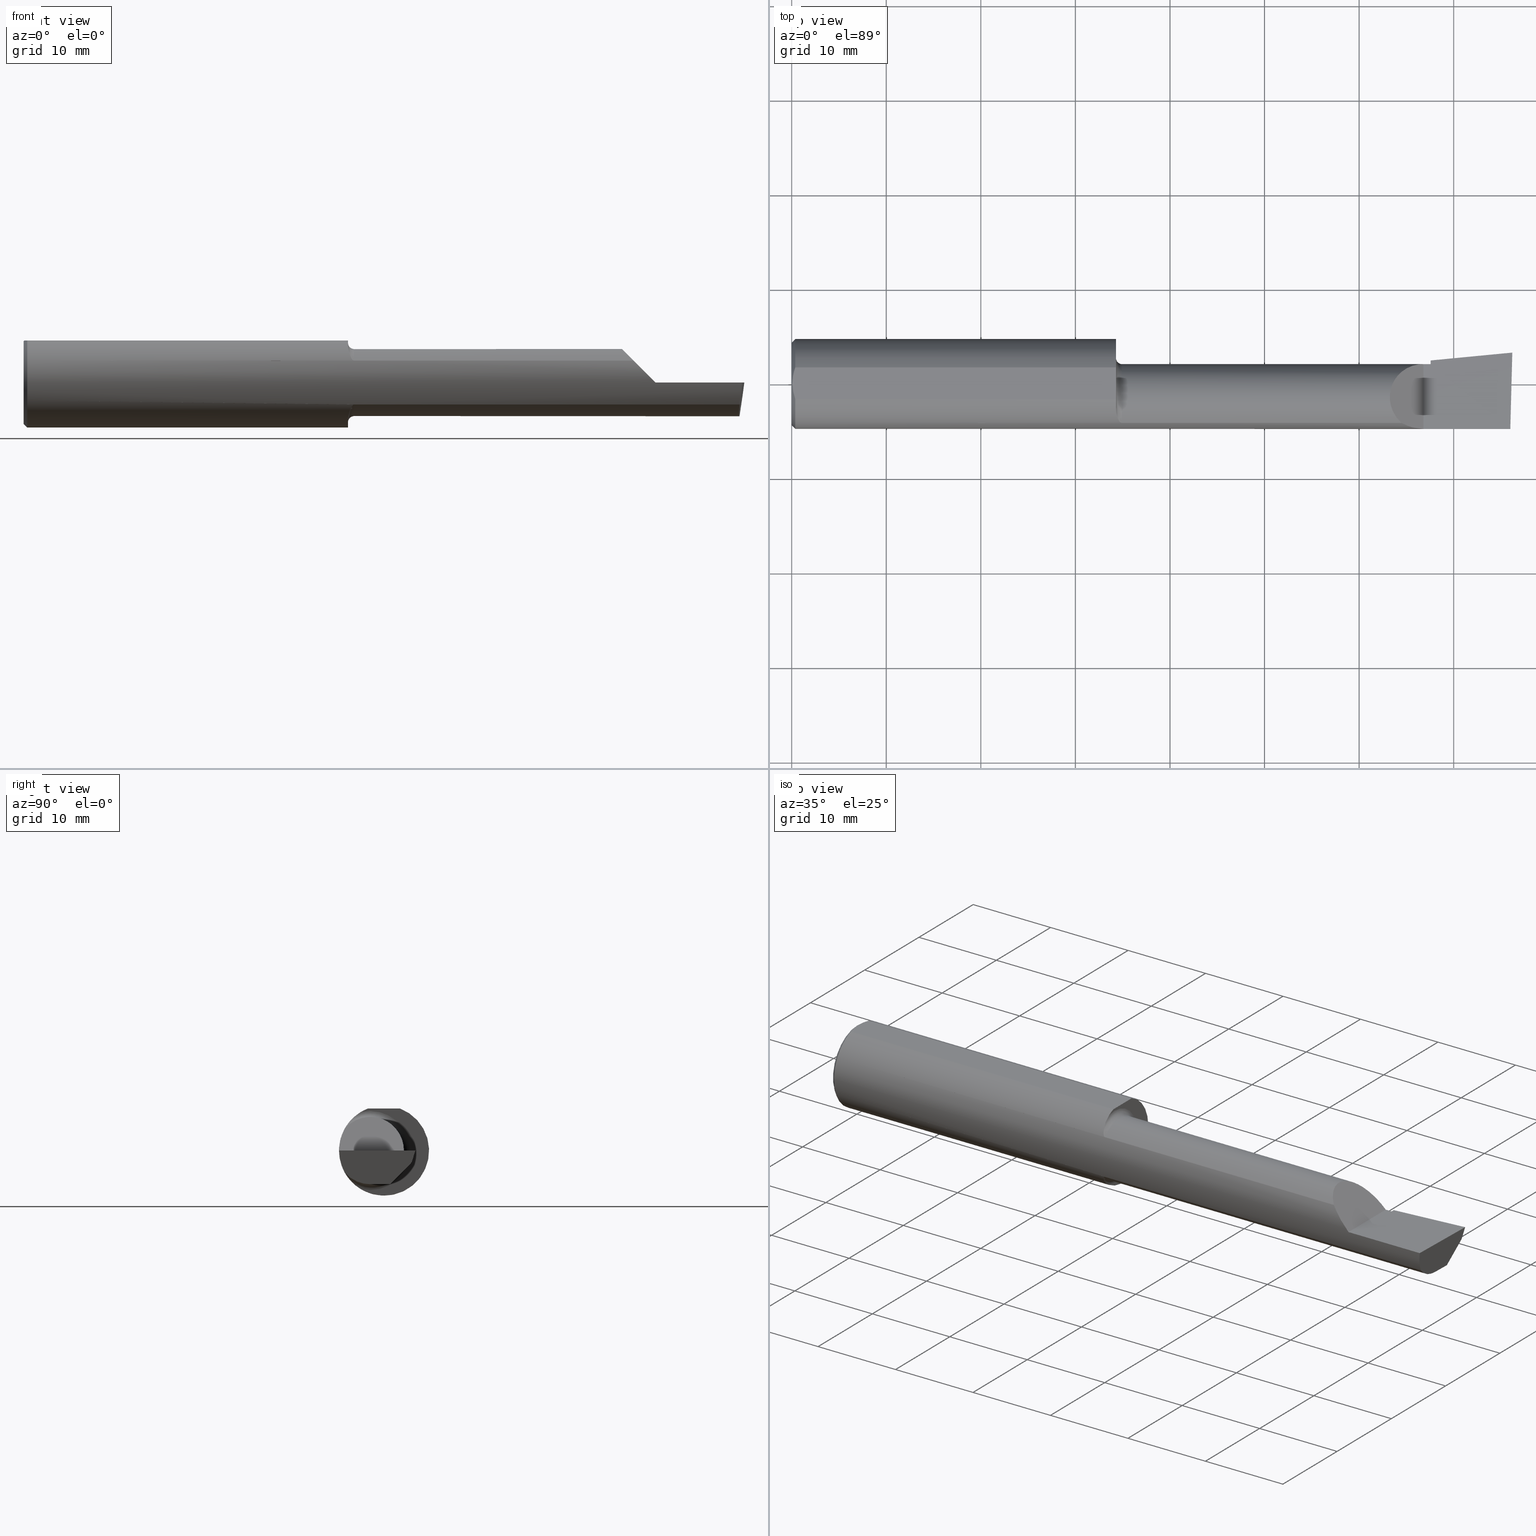
[diagram: canonical four-view strip — front | top / right | iso, engineering-drawing reading convention]
A machine part, canonical four-view strip (front | top / right | iso — engineering-drawing reading convention). The complete STEP part file that produces these views, byte-faithful:
ISO-10303-21;
HEADER;
FILE_DESCRIPTION (( 'STEP AP214' ),
    '1' );
FILE_NAME ('B3201600.STEP',
    '2020-05-07T19:10:57',
    ( '' ),
    ( '' ),
    'SwSTEP 2.0',
    'SolidWorks 2018',
    '' );
FILE_SCHEMA (( 'AUTOMOTIVE_DESIGN' ));
ENDSEC;

DATA;
#1 = LINE ( 'NONE', #24, #16 ) ;
#2 = EDGE_LOOP ( 'NONE', ( #470, #54, #351, #475, #72, #394, #500, #101, #364, #507 ) ) ;
#3 = ORIENTED_EDGE ( 'NONE', *, *, #292, .T. ) ;
#4 = CARTESIAN_POINT ( 'NONE',  ( 2.659999999999999698, -0.05739999999999999963, -0.1400500000000000633 ) ) ;
#5 = DIRECTION ( 'NONE',  ( 0.0000000000000000000, 0.0000000000000000000, -1.000000000000000000 ) ) ;
#6 = DIRECTION ( 'NONE',  ( -1.000000000000000000, -5.691349986800549142E-18, -0.0000000000000000000 ) ) ;
#7 = SURFACE_STYLE_USAGE ( .BOTH. , #343 ) ;
#8 = VERTEX_POINT ( 'NONE', #289 ) ;
#9 = DIRECTION ( 'NONE',  ( 1.000000000000000000, 0.0000000000000000000, 0.0000000000000000000 ) ) ;
#10 = CARTESIAN_POINT ( 'NONE',  ( 1.350000000000000089, 0.2373500000000000332, 0.1753499999999999504 ) ) ;
#11 = DIRECTION ( 'NONE',  ( 3.962974135542379642E-18, -0.6963153109074927682, -0.7177360153954946975 ) ) ;
#12 = AXIS2_PLACEMENT_3D ( 'NONE', #104, #478, #589 ) ;
#13 = CARTESIAN_POINT ( 'NONE',  ( 2.659999999999999698, 0.09791172361283660697, 0.0000000000000000000 ) ) ;
#14 = EDGE_CURVE ( 'NONE', #393, #8, #505, .T. ) ;
#15 = VECTOR ( 'NONE', #529, 39.37007874015748143 ) ;
#16 = VECTOR ( 'NONE', #419, 39.37007874015748143 ) ;
#17 = FACE_OUTER_BOUND ( 'NONE', #98, .T. ) ;
#18 = DIRECTION ( 'NONE',  ( 0.7071067811865390240, 8.659560562355036396E-17, 0.7071067811865560104 ) ) ;
#19 = ADVANCED_BREP_SHAPE_REPRESENTATION ( 'B3201600', ( #160, #332 ), #284 ) ;
#20 = AXIS2_PLACEMENT_3D ( 'NONE', #190, #218, #86 ) ;
#21 = DIRECTION ( 'NONE',  ( 0.0000000000000000000, 0.6963153109074926572, 0.7177360153954946975 ) ) ;
#22 = CYLINDRICAL_SURFACE ( 'NONE', #203, 0.1873499999999999888 ) ;
#23 = EDGE_CURVE ( 'NONE', #37, #525, #187, .T. ) ;
#24 = CARTESIAN_POINT ( 'NONE',  ( 1.047026079080030980, -0.05740000000000000657, 2.081593536574432036E-16 ) ) ;
#25 = CARTESIAN_POINT ( 'NONE',  ( 0.0000000000000000000, 0.0000000000000000000, 0.0000000000000000000 ) ) ;
#26 = PLANE ( 'NONE',  #97 ) ;
#27 = DIRECTION ( 'NONE',  ( 0.0000000000000000000, -1.000000000000000000, 0.0000000000000000000 ) ) ;
#28 = ORIENTED_EDGE ( 'NONE', *, *, #52, .T. ) ;
#29 = ORIENTED_EDGE ( 'NONE', *, *, #68, .F. ) ;
#30 = PLANE ( 'NONE',  #127 ) ;
#31 = CARTESIAN_POINT ( 'NONE',  ( 2.659999999999999698, 0.06382066673065302231, -0.06931012851386068874 ) ) ;
#32 = PRESENTATION_STYLE_ASSIGNMENT (( #574 ) ) ;
#33 = CARTESIAN_POINT ( 'NONE',  ( 2.659999999999999698, -0.05739999999999999963, 0.0000000000000000000 ) ) ;
#34 = CARTESIAN_POINT ( 'NONE',  ( 3.011419111345318367, 0.1163922996227946122, -0.05000000000000000971 ) ) ;
#35 = DIRECTION ( 'NONE',  ( -0.06894566448119619773, 0.7160281025913033393, -0.6946583704589935904 ) ) ;
#36 = DIRECTION ( 'NONE',  ( 1.000000000000000000, 5.691349986800549142E-18, 0.0000000000000000000 ) ) ;
#37 = VERTEX_POINT ( 'NONE', #223 ) ;
#38 = ORIENTED_EDGE ( 'NONE', *, *, #244, .F. ) ;
#39 = CARTESIAN_POINT ( 'NONE',  ( 0.01499999999999999424, 0.0000000000000000000, 0.0000000000000000000 ) ) ;
#40 = DIRECTION ( 'NONE',  ( 5.691349986800549142E-18, -1.000000000000000000, 0.0000000000000000000 ) ) ;
#41 = DIRECTION ( 'NONE',  ( -1.000000000000000000, -5.691349986800549142E-18, -0.0000000000000000000 ) ) ;
#42 = LINE ( 'NONE', #474, #433 ) ;
#43 = DIRECTION ( 'NONE',  ( -1.000000000000000000, -5.691349986800549142E-18, 0.0000000000000000000 ) ) ;
#44 = ORIENTED_EDGE ( 'NONE', *, *, #383, .F. ) ;
#45 = ORIENTED_EDGE ( 'NONE', *, *, #169, .T. ) ;
#46 = VERTEX_POINT ( 'NONE', #214 ) ;
#47 = DIRECTION ( 'NONE',  ( -1.415561931153809475E-16, 0.0000000000000000000, -1.000000000000000000 ) ) ;
#48 = ORIENTED_EDGE ( 'NONE', *, *, #143, .T. ) ;
#49 = DIRECTION ( 'NONE',  ( 0.0000000000000000000, 0.0000000000000000000, -1.000000000000000000 ) ) ;
#50 = VECTOR ( 'NONE', #416, 39.37007874015748143 ) ;
#51 = DIRECTION ( 'NONE',  ( 0.0000000000000000000, 1.000000000000000000, 0.0000000000000000000 ) ) ;
#52 = EDGE_CURVE ( 'NONE', #306, #272, #503, .T. ) ;
#53 = DIRECTION ( 'NONE',  ( 1.000000000000000000, 0.0000000000000000000, 0.0000000000000000000 ) ) ;
#54 = ORIENTED_EDGE ( 'NONE', *, *, #153, .T. ) ;
#55 = ORIENTED_EDGE ( 'NONE', *, *, #567, .T. ) ;
#56 = VECTOR ( 'NONE', #526, 39.37007874015748854 ) ;
#57 = CONICAL_SURFACE ( 'NONE', #64, 0.1873499999999999888, 0.7853981633974602694 ) ;
#58 = AXIS2_PLACEMENT_3D ( 'NONE', #79, #66, #59 ) ;
#59 = DIRECTION ( 'NONE',  ( -0.7071067811865516806, 0.0000000000000000000, 0.7071067811865434649 ) ) ;
#60 = DIRECTION ( 'NONE',  ( -1.000000000000000000, -0.0000000000000000000, -0.0000000000000000000 ) ) ;
#61 = DIRECTION ( 'NONE',  ( 0.02617694830786174848, 0.9996573249755575929, -3.650474420802213197E-18 ) ) ;
#62 = CARTESIAN_POINT ( 'NONE',  ( 0.0000000000000000000, 0.0000000000000000000, 0.0000000000000000000 ) ) ;
#63 = ORIENTED_EDGE ( 'NONE', *, *, #259, .T. ) ;
#64 = AXIS2_PLACEMENT_3D ( 'NONE', #39, #53, #49 ) ;
#65 = VERTEX_POINT ( 'NONE', #180 ) ;
#66 = DIRECTION ( 'NONE',  ( -0.7071067811865434649, 0.0000000000000000000, -0.7071067811865516806 ) ) ;
#67 = CARTESIAN_POINT ( 'NONE',  ( 2.977889026591903576, -0.05682100378451744593, -0.1400500000000000633 ) ) ;
#68 = EDGE_CURVE ( 'NONE', #472, #335, #490, .T. ) ;
#69 = FILL_AREA_STYLE ('',( #171 ) ) ;
#70 = CARTESIAN_POINT ( 'NONE',  ( 2.659999999999999698, -0.05739999999999999963, 0.0000000000000000000 ) ) ;
#71 = CIRCLE ( 'NONE', #12, 0.1723499999999996424 ) ;
#72 = ORIENTED_EDGE ( 'NONE', *, *, #197, .T. ) ;
#73 = ORIENTED_EDGE ( 'NONE', *, *, #556, .T. ) ;
#74 = DIRECTION ( 'NONE',  ( 0.0000000000000000000, -1.000000000000000000, 0.0000000000000000000 ) ) ;
#75 = VECTOR ( 'NONE', #200, 39.37007874015748143 ) ;
#76 = DIRECTION ( 'NONE',  ( -1.000000000000000000, -5.691349986800549142E-18, -0.0000000000000000000 ) ) ;
#77 = CIRCLE ( 'NONE', #240, 0.1400500000000000356 ) ;
#78 = CARTESIAN_POINT ( 'NONE',  ( 2.659999999999999698, -0.05739999999999999963, 0.0000000000000000000 ) ) ;
#79 = CARTESIAN_POINT ( 'NONE',  ( 2.629999999999999893, -0.2500000000000000555, -1.592040838891560883E-17 ) ) ;
#80 = AXIS2_PLACEMENT_3D ( 'NONE', #87, #43, #40 ) ;
#81 = DIRECTION ( 'NONE',  ( -1.000000000000000000, -5.691349986800549142E-18, -0.0000000000000000000 ) ) ;
#82 = CARTESIAN_POINT ( 'NONE',  ( 1.350000000000000089, -0.05740000000000000657, 0.0000000000000000000 ) ) ;
#83 = DIRECTION ( 'NONE',  ( -1.000000000000000000, -0.0000000000000000000, -0.0000000000000000000 ) ) ;
#84 = PLANE ( 'NONE',  #80 ) ;
#85 = ORIENTED_EDGE ( 'NONE', *, *, #249, .T. ) ;
#86 = DIRECTION ( 'NONE',  ( 0.0000000000000000000, -1.000000000000000000, 0.0000000000000000000 ) ) ;
#87 = CARTESIAN_POINT ( 'NONE',  ( 2.659999999999999698, 0.09791172361283660697, 0.0000000000000000000 ) ) ;
#88 = COLOUR_RGB ( '',0.7529411764705882248, 0.7529411764705882248, 0.7529411764705882248 ) ;
#89 = EDGE_CURVE ( 'NONE', #46, #472, #591, .T. ) ;
#90 = PLANE ( 'NONE',  #58 ) ;
#91 = LINE ( 'NONE', #585, #50 ) ;
#92 = CARTESIAN_POINT ( 'NONE',  ( 1.350000000000000533, -0.1045082199249680460, -0.1557306416133594773 ) ) ;
#93 = DIRECTION ( 'NONE',  ( 0.0000000000000000000, 1.000000000000000000, -1.438723400918613551E-16 ) ) ;
#94 = ORIENTED_EDGE ( 'NONE', *, *, #596, .F. ) ;
#95 = ORIENTED_EDGE ( 'NONE', *, *, #377, .F. ) ;
#96 = DIRECTION ( 'NONE',  ( 0.0000000000000000000, -1.438723400918613551E-16, -1.000000000000000000 ) ) ;
#97 = AXIS2_PLACEMENT_3D ( 'NONE', #34, #35, #21 ) ;
#98 = EDGE_LOOP ( 'NONE', ( #576, #446 ) ) ;
#99 = EDGE_CURVE ( 'NONE', #142, #281, #443, .T. ) ;
#100 = ORIENTED_EDGE ( 'NONE', *, *, #362, .T. ) ;
#101 = ORIENTED_EDGE ( 'NONE', *, *, #564, .F. ) ;
#102 = FACE_OUTER_BOUND ( 'NONE', #420, .T. ) ;
#103 = PLANE ( 'NONE',  #387 ) ;
#104 = CARTESIAN_POINT ( 'NONE',  ( 0.0000000000000000000, 0.0000000000000000000, 0.0000000000000000000 ) ) ;
#105 = PLANE ( 'NONE',  #541 ) ;
#106 = CARTESIAN_POINT ( 'NONE',  ( 2.977925907309858733, -0.1365595166907236646, -0.1227499502647107915 ) ) ;
#107 = ORIENTED_EDGE ( 'NONE', *, *, #153, .F. ) ;
#108 = DIRECTION ( 'NONE',  ( -0.0000000000000000000, 1.000000000000000000, -0.0000000000000000000 ) ) ;
#109 = VECTOR ( 'NONE', #122, 39.37007874015748143 ) ;
#110 = LINE ( 'NONE', #499, #15 ) ;
#111 = ORIENTED_EDGE ( 'NONE', *, *, #421, .T. ) ;
#112 = ORIENTED_EDGE ( 'NONE', *, *, #444, .F. ) ;
#113 = CARTESIAN_POINT ( 'NONE',  ( 1.367975941902153769, -0.1612443294219079171, -0.09540922431498234657 ) ) ;
#114 = LINE ( 'NONE', #324, #75 ) ;
#115 = CARTESIAN_POINT ( 'NONE',  ( 2.538695632261437130, -0.1635956445993032027, 0.09130436773856151489 ) ) ;
#116 = EDGE_CURVE ( 'NONE', #37, #65, #202, .T. ) ;
#117 = CARTESIAN_POINT ( 'NONE',  ( 2.980058035321266008, 0.02601009779168165365, -0.1400500000000000911 ) ) ;
#118 = CARTESIAN_POINT ( 'NONE',  ( 0.01499999999999997863, -0.06597272163553657975, 0.1753499999999999781 ) ) ;
#119 = EDGE_CURVE ( 'NONE', #525, #408, #159, .T. ) ;
#120 = CARTESIAN_POINT ( 'NONE',  ( 2.629999999999999893, -0.2500000000000000555, -1.592040838891560883E-17 ) ) ;
#121 = CARTESIAN_POINT ( 'NONE',  ( 3.000000000000000444, 0.2373500000000000332, 0.1753499999999999504 ) ) ;
#122 = DIRECTION ( 'NONE',  ( 5.691349986800549142E-18, -1.000000000000000000, 1.438723400918613551E-16 ) ) ;
#123 = CARTESIAN_POINT ( 'NONE',  ( 2.975850273311264615, -0.1244607267090813429, -0.1422282308645910209 ) ) ;
#124 = CARTESIAN_POINT ( 'NONE',  ( 3.000188977433809967, 0.1311105994646679929, 0.001440373173037931857 ) ) ;
#125 = PLANE ( 'NONE',  #392 ) ;
#126 = DIRECTION ( 'NONE',  ( 1.000000000000000000, 0.0000000000000000000, 0.0000000000000000000 ) ) ;
#127 = AXIS2_PLACEMENT_3D ( 'NONE', #25, #9, #5 ) ;
#128 = VECTOR ( 'NONE', #129, 39.37007874015748143 ) ;
#129 = DIRECTION ( 'NONE',  ( -5.691349986800549142E-18, 1.000000000000000000, 8.056458378187594471E-34 ) ) ;
#130 = CARTESIAN_POINT ( 'NONE',  ( 1.350000000000000089, 0.0000000000000000000, 0.0000000000000000000 ) ) ;
#131 = ORIENTED_EDGE ( 'NONE', *, *, #323, .F. ) ;
#132 = DIRECTION ( 'NONE',  ( 0.0000000000000000000, 0.0000000000000000000, -1.000000000000000000 ) ) ;
#133 = ORIENTED_EDGE ( 'NONE', *, *, #270, .T. ) ;
#134 = AXIS2_PLACEMENT_3D ( 'NONE', #482, #554, #495 ) ;
#135 = VECTOR ( 'NONE', #260, 39.37007874015748854 ) ;
#136 = UNCERTAINTY_MEASURE_WITH_UNIT (LENGTH_MEASURE( 1.000000000000000082E-05 ), #208, 'distance_accuracy_value', 'NONE');
#137 = DIRECTION ( 'NONE',  ( 0.1240019227989310469, 0.3022330132596640073, 0.9451342385281318315 ) ) ;
#138 = CARTESIAN_POINT ( 'NONE',  ( 0.01499999999999999424, 0.0000000000000000000, 0.0000000000000000000 ) ) ;
#139 = ORIENTED_EDGE ( 'NONE', *, *, #68, .T. ) ;
#140 = EDGE_LOOP ( 'NONE', ( #28, #63, #45, #457 ) ) ;
#141 = AXIS2_PLACEMENT_3D ( 'NONE', #13, #563, #459 ) ;
#142 = VERTEX_POINT ( 'NONE', #373 ) ;
#143 = EDGE_CURVE ( 'NONE', #287, #393, #360, .T. ) ;
#144 = VECTOR ( 'NONE', #11, 39.37007874015748143 ) ;
#145 = CARTESIAN_POINT ( 'NONE',  ( 2.659999999999999698, 0.09791172361284160297, 3.564207929233843464E-16 ) ) ;
#146 = ORIENTED_EDGE ( 'NONE', *, *, #236, .F. ) ;
#147 = ORIENTED_EDGE ( 'NONE', *, *, #292, .F. ) ;
#148 = EDGE_CURVE ( 'NONE', #281, #349, #401, .T. ) ;
#149 = FACE_OUTER_BOUND ( 'NONE', #336, .T. ) ;
#150 = LINE ( 'NONE', #339, #135 ) ;
#151 = EDGE_CURVE ( 'NONE', #306, #142, #201, .T. ) ;
#152 = CARTESIAN_POINT ( 'NONE',  ( 1.375000000000000000, -0.1635956445993028141, 0.09130436773856195898 ) ) ;
#153 = EDGE_CURVE ( 'NONE', #37, #393, #575, .T. ) ;
#154 = EDGE_LOOP ( 'NONE', ( #147, #371, #532, #266 ) ) ;
#155 = CARTESIAN_POINT ( 'NONE',  ( 1.375000000000000000, -0.1635956445993028141, 0.09130436773856195898 ) ) ;
#156 = FACE_OUTER_BOUND ( 'NONE', #183, .T. ) ;
#157 = CARTESIAN_POINT ( 'NONE',  ( 2.659999999999999698, 0.06382066673065302231, -0.06931012851386068874 ) ) ;
#158 = CARTESIAN_POINT ( 'NONE',  ( 2.017499999999999627, -0.1635956445993030084, -0.09130436773856182020 ) ) ;
#159 = LINE ( 'NONE', #337, #434 ) ;
#160 = MANIFOLD_SOLID_BREP ( 'AC1E0625-BE1C-467e-97C6-19D7A493B566-GAAFaceID8', #582 ) ;
#161 = CARTESIAN_POINT ( 'NONE',  ( 1.372800914500664771, -0.1635956445997548414, 0.09130436773775266190 ) ) ;
#162 = LINE ( 'NONE', #547, #386 ) ;
#163 = ORIENTED_EDGE ( 'NONE', *, *, #220, .F. ) ;
#164 = CARTESIAN_POINT ( 'NONE',  ( 0.01499999999999999424, 2.294375778202566330E-17, 0.1873499999999999888 ) ) ;
#165 = ORIENTED_EDGE ( 'NONE', *, *, #14, .F. ) ;
#166 = CIRCLE ( 'NONE', #273, 0.1873499999999999888 ) ;
#167 = AXIS2_PLACEMENT_3D ( 'NONE', #245, #36, #51 ) ;
#168 = CARTESIAN_POINT ( 'NONE',  ( 1.370903862568969123, -0.1628809688430619684, 0.09258733509388514249 ) ) ;
#169 = EDGE_CURVE ( 'NONE', #553, #142, #584, .T. ) ;
#170 = CARTESIAN_POINT ( 'NONE',  ( 1.368001859868116954, -0.1612625562479369501, 0.09537826053888209810 ) ) ;
#171 = FILL_AREA_STYLE_COLOUR ( '', #88 ) ;
#172 = ORIENTED_EDGE ( 'NONE', *, *, #116, .T. ) ;
#173 = CARTESIAN_POINT ( 'NONE',  ( 1.366855994529494023, -0.1603175578889966257, 0.09696363432848485731 ) ) ;
#174 = CARTESIAN_POINT ( 'NONE',  ( 1.363764108097883510, -0.1573043405450769150, 0.1018329020719639239 ) ) ;
#175 = LINE ( 'NONE', #455, #56 ) ;
#176 = CARTESIAN_POINT ( 'NONE',  ( 1.362204638458737405, -0.1550630761760522225, 0.1052254855377564996 ) ) ;
#177 = FACE_OUTER_BOUND ( 'NONE', #515, .T. ) ;
#178 = PRODUCT_DEFINITION_SHAPE ( 'NONE', 'NONE',  #519 ) ;
#179 = CARTESIAN_POINT ( 'NONE',  ( 1.358072954143140221, -0.1479074971576197217, 0.1152872342625233248 ) ) ;
#180 = CARTESIAN_POINT ( 'NONE',  ( 2.977873865042416135, -0.05739999999999999963, -0.1400500000000000633 ) ) ;
#181 = CARTESIAN_POINT ( 'NONE',  ( 1.375000000000000000, -0.05740000000000001351, 0.0000000000000000000 ) ) ;
#182 = CARTESIAN_POINT ( 'NONE',  ( 1.356142321956750996, -0.1426151417460929660, 0.1217894822571234520 ) ) ;
#183 = EDGE_LOOP ( 'NONE', ( #286, #520 ) ) ;
#184 = CARTESIAN_POINT ( 'NONE',  ( 1.353025912205683357, -0.1310442973014113721, 0.1341609063345044484 ) ) ;
#185 = DIRECTION ( 'NONE',  ( -1.000000000000000000, -5.691349986800549142E-18, -0.0000000000000000000 ) ) ;
#186 = CARTESIAN_POINT ( 'NONE',  ( 1.351891754936544787, -0.1247344934163566177, 0.1400506178720502537 ) ) ;
#187 =( BOUNDED_CURVE ( )  B_SPLINE_CURVE ( 3, ( #283, #277, #334, #238 ),
 .UNSPECIFIED., .F., .F. ) 
 B_SPLINE_CURVE_WITH_KNOTS ( ( 4, 4 ),
 ( 0.8516985021653838972, 1.360746882514818790 ),
 .UNSPECIFIED. ) 
 CURVE ( )  GEOMETRIC_REPRESENTATION_ITEM ( )  RATIONAL_B_SPLINE_CURVE ( ( 1.000000000000000000, 0.9785221379938656705, 0.9785221379938656705, 1.000000000000000000 ) ) 
 REPRESENTATION_ITEM ( '' )  );
#188 = CARTESIAN_POINT ( 'NONE',  ( 1.350383728133730532, -0.1114837668894150813, 0.1508119329971097655 ) ) ;
#189 = ORIENTED_EDGE ( 'NONE', *, *, #527, .F. ) ;
#190 = CARTESIAN_POINT ( 'NONE',  ( 1.375000000000000000, -0.05740000000000000657, 0.0000000000000000000 ) ) ;
#191 = DIRECTION ( 'NONE',  ( -0.9922060308645482829, 0.02598182930468199286, 0.1218693434051471985 ) ) ;
#192 = EDGE_CURVE ( 'NONE', #272, #595, #1, .T. ) ;
#193 = FACE_OUTER_BOUND ( 'NONE', #154, .T. ) ;
#194 = VERTEX_POINT ( 'NONE', #483 ) ;
#195 = DIRECTION ( 'NONE',  ( 0.0000000000000000000, -1.000000000000000000, 0.0000000000000000000 ) ) ;
#196 = ORIENTED_EDGE ( 'NONE', *, *, #410, .F. ) ;
#197 = EDGE_CURVE ( 'NONE', #535, #376, #466, .T. ) ;
#198 = AXIS2_PLACEMENT_3D ( 'NONE', #130, #550, #551 ) ;
#199 = AXIS2_PLACEMENT_3D ( 'NONE', #365, #415, #422 ) ;
#200 = DIRECTION ( 'NONE',  ( -1.000000000000000000, 5.691349986800548372E-18, -0.0000000000000000000 ) ) ;
#201 = CIRCLE ( 'NONE', #501, 0.1400500000000001188 ) ;
#202 =( BOUNDED_CURVE ( )  B_SPLINE_CURVE ( 3, ( #454, #106, #570, #536 ),
 .UNSPECIFIED., .F., .T. ) 
 B_SPLINE_CURVE_WITH_KNOTS ( ( 4, 4 ),
 ( 5.632580117768535288, 6.493234751459663556 ),
 .UNSPECIFIED. ) 
 CURVE ( )  GEOMETRIC_REPRESENTATION_ITEM ( )  RATIONAL_B_SPLINE_CURVE ( ( 1.000000000000000000, 0.9392195014330942948, 0.9392195014330942948, 1.000000000000000000 ) ) 
 REPRESENTATION_ITEM ( '' )  );
#203 = AXIS2_PLACEMENT_3D ( 'NONE', #465, #467, #461 ) ;
#204 = FACE_OUTER_BOUND ( 'NONE', #248, .T. ) ;
#205 = CARTESIAN_POINT ( 'NONE',  ( 1.350000000000000311, -0.1045012500212953166, 0.1557348687830035772 ) ) ;
#206 = B_SPLINE_CURVE_WITH_KNOTS ( 'NONE', 3,
 ( #548, #522, #372, #369, #542, #586 ),
 .UNSPECIFIED., .F., .F.,
 ( 4, 2, 4 ),
 ( 0.003480013901590607410, 0.004330767971208085432, 0.005181522040825563453 ),
 .UNSPECIFIED. ) ;
#207 = SHAPE_DEFINITION_REPRESENTATION ( #178, #19 ) ;
#208 =( CONVERSION_BASED_UNIT ( 'INCH', #514 ) LENGTH_UNIT ( ) NAMED_UNIT ( #508 ) );
#209 = ORIENTED_EDGE ( 'NONE', *, *, #244, .T. ) ;
#210 = DIRECTION ( 'NONE',  ( 0.1219104985252825735, 0.0000000000000000000, 0.9925410975618678133 ) ) ;
#211 = CARTESIAN_POINT ( 'NONE',  ( 0.0000000000000000000, 0.0000000000000000000, 0.0000000000000000000 ) ) ;
#212 = CARTESIAN_POINT ( 'NONE',  ( 2.659999999999999698, -0.2500000000000000555, -2.016709418237695393E-17 ) ) ;
#213 = CARTESIAN_POINT ( 'NONE',  ( 2.659999999999999698, 0.01441505128072268979, -0.1202356058309982378 ) ) ;
#214 = CARTESIAN_POINT ( 'NONE',  ( 0.0000000000000000000, 0.0000000000000000000, -0.1723499999999996424 ) ) ;
#215 = ADVANCED_FACE ( 'NONE', ( #177 ), #417, .F. ) ;
#216 = TOROIDAL_SURFACE ( 'NONE', #350, 0.1650499999999999468, 0.02499999999999993894 ) ;
#217 = ORIENTED_EDGE ( 'NONE', *, *, #14, .T. ) ;
#218 = DIRECTION ( 'NONE',  ( -1.000000000000000000, -5.691349986800549142E-18, -0.0000000000000000000 ) ) ;
#219 = ORIENTED_EDGE ( 'NONE', *, *, #596, .T. ) ;
#220 = EDGE_CURVE ( 'NONE', #472, #46, #71, .T. ) ;
#221 = CARTESIAN_POINT ( 'NONE',  ( 0.01499999999999999424, 0.0000000000000000000, -0.1873499999999999888 ) ) ;
#222 = DIRECTION ( 'NONE',  ( -5.691349986800549142E-18, 1.000000000000000000, 0.0000000000000000000 ) ) ;
#223 = CARTESIAN_POINT ( 'NONE',  ( 2.981080296960511244, -0.1635956445993030084, -0.09130436773856182020 ) ) ;
#224 = AXIS2_PLACEMENT_3D ( 'NONE', #310, #395, #402 ) ;
#225 = DIRECTION ( 'NONE',  ( 1.000000000000000000, 5.691349986800549142E-18, 0.0000000000000000000 ) ) ;
#226 = VERTEX_POINT ( 'NONE', #4 ) ;
#227 =( BOUNDED_CURVE ( )  B_SPLINE_CURVE ( 3, ( #566, #555, #568, #115 ),
 .UNSPECIFIED., .F., .T. ) 
 B_SPLINE_CURVE_WITH_KNOTS ( ( 4, 4 ),
 ( 4.712388980384689674, 5.221437360734123345 ),
 .UNSPECIFIED. ) 
 CURVE ( )  GEOMETRIC_REPRESENTATION_ITEM ( )  RATIONAL_B_SPLINE_CURVE ( ( 1.000000000000000000, 0.9785221379938657815, 0.9785221379938657815, 1.000000000000000000 ) ) 
 REPRESENTATION_ITEM ( '' )  );
#228 = CARTESIAN_POINT ( 'NONE',  ( 2.659999999999999698, 0.08265000000000008451, 3.563723795045364098E-16 ) ) ;
#229 = LINE ( 'NONE', #67, #333 ) ;
#230 = ORIENTED_EDGE ( 'NONE', *, *, #512, .F. ) ;
#231 = ADVANCED_FACE ( 'NONE', ( #321 ), #125, .T. ) ;
#232 = CARTESIAN_POINT ( 'NONE',  ( 1.350000000000000089, -0.09715400696864118224, 0.1601908905959924245 ) ) ;
#233 = APPLICATION_PROTOCOL_DEFINITION ( 'draft international standard', 'automotive_design', 1998, #345 ) ;
#234 = VECTOR ( 'NONE', #108, 39.37007874015748143 ) ;
#235 = CARTESIAN_POINT ( 'NONE',  ( 1.350000000000000089, -0.09715400696864118224, -0.1601908905959924245 ) ) ;
#236 = EDGE_CURVE ( 'NONE', #194, #8, #492, .T. ) ;
#237 = ADVANCED_FACE ( 'NONE', ( #285 ), #506, .T. ) ;
#238 = CARTESIAN_POINT ( 'NONE',  ( 2.991672876941000592, -0.1873499999999999888, -6.711400925391220565E-17 ) ) ;
#239 = FACE_OUTER_BOUND ( 'NONE', #381, .T. ) ;
#240 = AXIS2_PLACEMENT_3D ( 'NONE', #70, #242, #195 ) ;
#241 = ORIENTED_EDGE ( 'NONE', *, *, #410, .T. ) ;
#242 = DIRECTION ( 'NONE',  ( 1.000000000000000000, 5.691349986800549142E-18, 0.0000000000000000000 ) ) ;
#243 = ADVANCED_FACE ( 'NONE', ( #193 ), #378, .T. ) ;
#244 = EDGE_CURVE ( 'NONE', #46, #398, #593, .T. ) ;
#245 = CARTESIAN_POINT ( 'NONE',  ( 1.350000000000000089, 0.0000000000000000000, 0.0000000000000000000 ) ) ;
#246 = ORIENTED_EDGE ( 'NONE', *, *, #23, .T. ) ;
#247 = LINE ( 'NONE', #318, #312 ) ;
#248 = EDGE_LOOP ( 'NONE', ( #354, #255, #95, #94, #484 ) ) ;
#249 = EDGE_CURVE ( 'NONE', #561, #349, #253, .T. ) ;
#250 = ADVANCED_FACE ( 'NONE', ( #239 ), #216, .F. ) ;
#251 = VECTOR ( 'NONE', #412, 39.37007874015748143 ) ;
#252 =( NAMED_UNIT ( * ) PLANE_ANGLE_UNIT ( ) SI_UNIT ( $, .RADIAN. ) );
#253 = LINE ( 'NONE', #304, #388 ) ;
#254 = ORIENTED_EDGE ( 'NONE', *, *, #377, .T. ) ;
#255 = ORIENTED_EDGE ( 'NONE', *, *, #421, .F. ) ;
#256 = LINE ( 'NONE', #124, #391 ) ;
#257 = DIRECTION ( 'NONE',  ( 0.0000000000000000000, 0.0000000000000000000, 1.000000000000000000 ) ) ;
#258 = EDGE_LOOP ( 'NONE', ( #462, #278, #133, #294 ) ) ;
#259 = EDGE_CURVE ( 'NONE', #272, #553, #150, .T. ) ;
#260 = DIRECTION ( 'NONE',  ( 1.671023757235062219E-18, -0.2936076258024056806, -0.9559260233253797923 ) ) ;
#261 = MECHANICAL_DESIGN_GEOMETRIC_PRESENTATION_REPRESENTATION (  '', ( #404 ), #359 ) ;
#262 = CIRCLE ( 'NONE', #558, 0.1400500000000001188 ) ;
#263 = ADVANCED_FACE ( 'NONE', ( #102 ), #534, .T. ) ;
#264 = SURFACE_STYLE_FILL_AREA ( #69 ) ;
#265 =( NAMED_UNIT ( * ) SI_UNIT ( $, .STERADIAN. ) SOLID_ANGLE_UNIT ( ) );
#266 = ORIENTED_EDGE ( 'NONE', *, *, #192, .T. ) ;
#267 =( LENGTH_UNIT ( ) NAMED_UNIT ( * ) SI_UNIT ( $, .METRE. ) );
#268 = EDGE_CURVE ( 'NONE', #194, #287, #451, .T. ) ;
#269 = ORIENTED_EDGE ( 'NONE', *, *, #148, .F. ) ;
#270 = EDGE_CURVE ( 'NONE', #65, #226, #114, .T. ) ;
#271 = FACE_OUTER_BOUND ( 'NONE', #435, .T. ) ;
#272 = VERTEX_POINT ( 'NONE', #145 ) ;
#273 = AXIS2_PLACEMENT_3D ( 'NONE', #308, #327, #257 ) ;
#274 = DIMENSIONAL_EXPONENTS ( 1.000000000000000000, 0.0000000000000000000, 0.0000000000000000000, 0.0000000000000000000, 0.0000000000000000000, 0.0000000000000000000, 0.0000000000000000000 ) ;
#275 = ORIENTED_EDGE ( 'NONE', *, *, #480, .F. ) ;
#276 = EDGE_LOOP ( 'NONE', ( #328, #423, #479 ) ) ;
#277 = CARTESIAN_POINT ( 'NONE',  ( 2.984117089522341892, -0.1792580844883771007, -0.06324101202936142918 ) ) ;
#278 = ORIENTED_EDGE ( 'NONE', *, *, #444, .T. ) ;
#279 =( NAMED_UNIT ( * ) SI_UNIT ( $, .STERADIAN. ) SOLID_ANGLE_UNIT ( ) );
#280 = UNCERTAINTY_MEASURE_WITH_UNIT (LENGTH_MEASURE( 1.000000000000000082E-05 ), #552, 'distance_accuracy_value', 'NONE');
#281 = VERTEX_POINT ( 'NONE', #213 ) ;
#282 =( NAMED_UNIT ( * ) PLANE_ANGLE_UNIT ( ) SI_UNIT ( $, .RADIAN. ) );
#283 = CARTESIAN_POINT ( 'NONE',  ( 2.981080296960511244, -0.1635956445993030084, -0.09130436773856182020 ) ) ;
#284 =( GEOMETRIC_REPRESENTATION_CONTEXT ( 3 ) GLOBAL_UNCERTAINTY_ASSIGNED_CONTEXT ( ( #348 ) ) GLOBAL_UNIT_ASSIGNED_CONTEXT ( ( #543, #252, #265 ) ) REPRESENTATION_CONTEXT ( 'NONE', 'WORKASPACE' ) );
#285 = FACE_OUTER_BOUND ( 'NONE', #2, .T. ) ;
#286 = ORIENTED_EDGE ( 'NONE', *, *, #564, .T. ) ;
#287 = VERTEX_POINT ( 'NONE', #152 ) ;
#288 = ADVANCED_FACE ( 'NONE', ( #347 ), #436, .T. ) ;
#289 = CARTESIAN_POINT ( 'NONE',  ( 1.350000000000000089, -0.09715400696864118224, -0.1601908905959924245 ) ) ;
#290 = ORIENTED_EDGE ( 'NONE', *, *, #383, .T. ) ;
#291 = CIRCLE ( 'NONE', #198, 0.1873499999999999888 ) ;
#292 = EDGE_CURVE ( 'NONE', #517, #595, #256, .T. ) ;
#293 = ORIENTED_EDGE ( 'NONE', *, *, #380, .T. ) ;
#294 = ORIENTED_EDGE ( 'NONE', *, *, #341, .T. ) ;
#295 = ADVANCED_FACE ( 'NONE', ( #204 ), #103, .F. ) ;
#296 = VECTOR ( 'NONE', #185, 39.37007874015748143 ) ;
#297 = ADVANCED_FACE ( 'NONE', ( #271 ), #105, .F. ) ;
#298 = ORIENTED_EDGE ( 'NONE', *, *, #23, .F. ) ;
#299 = ORIENTED_EDGE ( 'NONE', *, *, #362, .F. ) ;
#300 = CARTESIAN_POINT ( 'NONE',  ( 3.000000000000000444, -0.2500000000000000555, -6.829619984160658046E-17 ) ) ;
#301 = FILL_AREA_STYLE ('',( #578 ) ) ;
#302 = EDGE_CURVE ( 'NONE', #281, #226, #262, .T. ) ;
#303 = LINE ( 'NONE', #545, #486 ) ;
#304 = CARTESIAN_POINT ( 'NONE',  ( 2.991859106488688802, 0.02714641170210402646, -0.1400500000000000633 ) ) ;
#305 = VECTOR ( 'NONE', #430, 39.37007874015748143 ) ;
#306 = VERTEX_POINT ( 'NONE', #228 ) ;
#307 = ORIENTED_EDGE ( 'NONE', *, *, #567, .F. ) ;
#308 = CARTESIAN_POINT ( 'NONE',  ( 0.01499999999999999424, 0.0000000000000000000, 0.0000000000000000000 ) ) ;
#309 = ADVANCED_FACE ( 'NONE', ( #523 ), #90, .F. ) ;
#310 = CARTESIAN_POINT ( 'NONE',  ( 3.009953961983672599, 0.1316084575252021160, -6.829619984160658046E-17 ) ) ;
#311 = ADVANCED_FACE ( 'NONE', ( #379 ), #84, .T. ) ;
#312 = VECTOR ( 'NONE', #316, 39.37007874015748143 ) ;
#313 = ADVANCED_FACE ( 'NONE', ( #477 ), #57, .T. ) ;
#314 = CARTESIAN_POINT ( 'NONE',  ( 1.370881499230869771, -0.1628722075910989942, -0.09260290410947885631 ) ) ;
#315 = ORIENTED_EDGE ( 'NONE', *, *, #89, .F. ) ;
#316 = DIRECTION ( 'NONE',  ( 1.000000000000000000, 0.0000000000000000000, 0.0000000000000000000 ) ) ;
#317 = ADVANCED_FACE ( 'NONE', ( #577 ), #26, .T. ) ;
#318 = CARTESIAN_POINT ( 'NONE',  ( 0.0000000000000000000, 0.06597272163553677404, 0.1753499999999999226 ) ) ;
#319 = ADVANCED_FACE ( 'NONE', ( #17 ), #30, .F. ) ;
#320 = CARTESIAN_POINT ( 'NONE',  ( 1.372779935319434097, -0.1635956445993030639, -0.09130436773856182020 ) ) ;
#321 = FACE_OUTER_BOUND ( 'NONE', #140, .T. ) ;
#322 = CARTESIAN_POINT ( 'NONE',  ( 1.350000000000000089, 0.1076499999999999402, 0.0000000000000000000 ) ) ;
#323 = EDGE_CURVE ( 'NONE', #517, #553, #175, .T. ) ;
#324 = CARTESIAN_POINT ( 'NONE',  ( 3.000000000000000444, -0.05739999999999999963, -0.1400500000000000633 ) ) ;
#325 = ADVANCED_FACE ( 'NONE', ( #156 ), #385, .F. ) ;
#326 = CARTESIAN_POINT ( 'NONE',  ( 0.01128414053810044074, -0.05542038647445821781, 0.1753499999999999781 ) ) ;
#327 = DIRECTION ( 'NONE',  ( -1.000000000000000000, -0.0000000000000000000, -0.0000000000000000000 ) ) ;
#328 = ORIENTED_EDGE ( 'NONE', *, *, #302, .F. ) ;
#329 = ADVANCED_FACE ( 'NONE', ( #149 ), #22, .T. ) ;
#330 = CARTESIAN_POINT ( 'NONE',  ( 0.01499999999999997863, -0.06597272163553657975, 0.1753499999999999781 ) ) ;
#331 = CARTESIAN_POINT ( 'NONE',  ( 2.475085956200449022, 0.08265000000000004288, 0.1549140437995496777 ) ) ;
#332 = AXIS2_PLACEMENT_3D ( 'NONE', #211, #456, #450 ) ;
#333 = VECTOR ( 'NONE', #458, 39.37007874015748143 ) ;
#334 = CARTESIAN_POINT ( 'NONE',  ( 2.987725449370730590, -0.1873500000000000165, -0.03213820089768519572 ) ) ;
#335 = VERTEX_POINT ( 'NONE', #485 ) ;
#336 = EDGE_LOOP ( 'NONE', ( #107, #246, #426, #597, #521, #513, #196, #427, #307, #299, #111, #275, #165 ) ) ;
#337 = CARTESIAN_POINT ( 'NONE',  ( 5.044671737413194975E-32, -0.1873499999999999610, 3.563723795045361633E-16 ) ) ;
#338 = DIRECTION ( 'NONE',  ( -0.9953961983671800740, -0.09584575252021031166, -1.093478026937437971E-17 ) ) ;
#339 = CARTESIAN_POINT ( 'NONE',  ( 2.659999999999999698, 0.09456875743780461530, -0.01088401009027227528 ) ) ;
#340 = PRODUCT_DEFINITION_CONTEXT ( 'detailed design', #448, 'design' ) ;
#341 = EDGE_CURVE ( 'NONE', #226, #349, #42, .T. ) ;
#342 = CARTESIAN_POINT ( 'NONE',  ( 2.659999999999999698, 0.09791172361283660697, 0.0000000000000000000 ) ) ;
#343 = SURFACE_SIDE_STYLE ('',( #406 ) ) ;
#344 = EDGE_LOOP ( 'NONE', ( #163, #139, #254, #100, #38 ) ) ;
#345 = APPLICATION_CONTEXT ( 'automotive_design' ) ;
#346 = ORIENTED_EDGE ( 'NONE', *, *, #480, .T. ) ;
#347 = FACE_OUTER_BOUND ( 'NONE', #403, .T. ) ;
#348 = UNCERTAINTY_MEASURE_WITH_UNIT (LENGTH_MEASURE( 1.000000000000000082E-05 ), #543, 'distance_accuracy_value', 'NONE');
#349 = VERTEX_POINT ( 'NONE', #544 ) ;
#350 = AXIS2_PLACEMENT_3D ( 'NONE', #181, #81, #469 ) ;
#351 = ORIENTED_EDGE ( 'NONE', *, *, #143, .F. ) ;
#352 = LINE ( 'NONE', #533, #590 ) ;
#353 = ORIENTED_EDGE ( 'NONE', *, *, #236, .T. ) ;
#354 = ORIENTED_EDGE ( 'NONE', *, *, #380, .F. ) ;
#355 = CARTESIAN_POINT ( 'NONE',  ( 1.375000000000000000, -0.1635956445993029529, -0.09130436773856182020 ) ) ;
#356 = CARTESIAN_POINT ( 'NONE',  ( 0.008227791779583793277, -0.04447712204611815184, 0.1753499999999999781 ) ) ;
#357 = ADVANCED_FACE ( 'NONE', ( #573 ), #491, .F. ) ;
#358 = ORIENTED_EDGE ( 'NONE', *, *, #119, .F. ) ;
#359 =( GEOMETRIC_REPRESENTATION_CONTEXT ( 3 ) GLOBAL_UNCERTAINTY_ASSIGNED_CONTEXT ( ( #280 ) ) GLOBAL_UNIT_ASSIGNED_CONTEXT ( ( #552, #445, #452 ) ) REPRESENTATION_CONTEXT ( 'NONE', 'WORKASPACE' ) );
#360 = CIRCLE ( 'NONE', #20, 0.1400499999999999523 ) ;
#361 = CARTESIAN_POINT ( 'NONE',  ( 1.366814909379088228, -0.1602818635245156498, -0.09702252612905316875 ) ) ;
#362 = EDGE_CURVE ( 'NONE', #538, #398, #464, .T. ) ;
#363 = EDGE_CURVE ( 'NONE', #287, #535, #91, .T. ) ;
#364 = ORIENTED_EDGE ( 'NONE', *, *, #302, .T. ) ;
#365 = CARTESIAN_POINT ( 'NONE',  ( 3.000000000000000444, -0.05739999999999999963, -0.1400500000000000633 ) ) ;
#366 = CARTESIAN_POINT ( 'NONE',  ( 1.363743174082349796, -0.1572750258711007598, -0.1018777902325215673 ) ) ;
#367 = EDGE_LOOP ( 'NONE', ( #493, #189, #290 ) ) ;
#368 = CARTESIAN_POINT ( 'NONE',  ( 0.004093196532652217806, -0.02240707710020815174, 0.1753499999999999504 ) ) ;
#369 = CARTESIAN_POINT ( 'NONE',  ( 0.008244775919947433529, 0.04453482769755864185, 0.1753499999999999504 ) ) ;
#370 = CARTESIAN_POINT ( 'NONE',  ( 1.362184598714913042, -0.1550322129197695131, -0.1052705638704084928 ) ) ;
#371 = ORIENTED_EDGE ( 'NONE', *, *, #323, .T. ) ;
#372 = CARTESIAN_POINT ( 'NONE',  ( 0.004115035183746283340, 0.02255629470626750385, 0.1753499999999999781 ) ) ;
#373 = CARTESIAN_POINT ( 'NONE',  ( 2.659999999999999698, 0.06495571228477965697, -0.06814016562413265088 ) ) ;
#374 = CARTESIAN_POINT ( 'NONE',  ( 1.358068207442170383, -0.1478915270140208349, -0.1153063024254925573 ) ) ;
#375 = ORIENTED_EDGE ( 'NONE', *, *, #556, .F. ) ;
#376 = VERTEX_POINT ( 'NONE', #438 ) ;
#377 = EDGE_CURVE ( 'NONE', #335, #538, #206, .T. ) ;
#378 = PLANE ( 'NONE',  #224 ) ;
#379 = FACE_OUTER_BOUND ( 'NONE', #276, .T. ) ;
#380 = EDGE_CURVE ( 'NONE', #528, #557, #425, .T. ) ;
#381 = EDGE_LOOP ( 'NONE', ( #494, #48, #217, #146 ) ) ;
#382 = LENGTH_MEASURE_WITH_UNIT ( LENGTH_MEASURE( 0.02539999999999999897 ), #267 );
#383 = EDGE_CURVE ( 'NONE', #408, #376, #587, .T. ) ;
#384 = VECTOR ( 'NONE', #18, 39.37007874015748143 ) ;
#385 = PLANE ( 'NONE',  #141 ) ;
#386 = VECTOR ( 'NONE', #83, 39.37007874015748143 ) ;
#387 = AXIS2_PLACEMENT_3D ( 'NONE', #121, #96, #93 ) ;
#388 = VECTOR ( 'NONE', #338, 39.37007874015748854 ) ;
#389 = VERTEX_POINT ( 'NONE', #118 ) ;
#390 = AXIS2_PLACEMENT_3D ( 'NONE', #62, #60, #498 ) ;
#391 = VECTOR ( 'NONE', #137, 39.37007874015748143 ) ;
#392 = AXIS2_PLACEMENT_3D ( 'NONE', #342, #579, #580 ) ;
#393 = VERTEX_POINT ( 'NONE', #571 ) ;
#394 = ORIENTED_EDGE ( 'NONE', *, *, #512, .T. ) ;
#395 = DIRECTION ( 'NONE',  ( -0.09165774897393340337, 0.9519021185660615503, -0.2923717047227299970 ) ) ;
#396 = CARTESIAN_POINT ( 'NONE',  ( 1.356145841430604237, -0.1426194794824337253, -0.1217813759115469463 ) ) ;
#397 = DIRECTION ( 'NONE',  ( -1.000000000000000000, 0.0000000000000000000, 1.415561931153809475E-16 ) ) ;
#398 = VERTEX_POINT ( 'NONE', #414 ) ;
#399 = AXIS2_PLACEMENT_3D ( 'NONE', #322, #225, #222 ) ;
#400 = CARTESIAN_POINT ( 'NONE',  ( 1.353041727949557460, -0.1311116946065050137, -0.1340922927843371804 ) ) ;
#401 = LINE ( 'NONE', #489, #251 ) ;
#402 = DIRECTION ( 'NONE',  ( 0.0000000000000000000, 0.2936076258024056806, 0.9559260233253795702 ) ) ;
#403 = EDGE_LOOP ( 'NONE', ( #29, #315, #209, #55, #219 ) ) ;
#404 = STYLED_ITEM ( 'NONE', ( #32 ), #160 ) ;
#405 = ORIENTED_EDGE ( 'NONE', *, *, #99, .F. ) ;
#406 = SURFACE_STYLE_FILL_AREA ( #301 ) ;
#407 = CARTESIAN_POINT ( 'NONE',  ( 1.351903396790307355, -0.1248165254919060274, -0.1399798634953947629 ) ) ;
#408 = VERTEX_POINT ( 'NONE', #431 ) ;
#409 = CARTESIAN_POINT ( 'NONE',  ( 1.350384441902395372, -0.1115101367984838443, -0.1507946173152225067 ) ) ;
#410 = EDGE_CURVE ( 'NONE', #557, #194, #546, .T. ) ;
#411 = ORIENTED_EDGE ( 'NONE', *, *, #192, .F. ) ;
#412 = DIRECTION ( 'NONE',  ( 3.962974135542379642E-18, -0.6963153109074927682, -0.7177360153954946975 ) ) ;
#413 = ORIENTED_EDGE ( 'NONE', *, *, #476, .T. ) ;
#414 = CARTESIAN_POINT ( 'NONE',  ( 0.01499999999999999424, 0.0000000000000000000, -0.1873499999999999888 ) ) ;
#415 = DIRECTION ( 'NONE',  ( -4.858719700838189497E-34, -8.537024980200821325E-17, 1.000000000000000000 ) ) ;
#416 = DIRECTION ( 'NONE',  ( 1.000000000000000000, 5.691349986800549142E-18, 0.0000000000000000000 ) ) ;
#417 = PLANE ( 'NONE',  #559 ) ;
#418 = PRESENTATION_LAYER_ASSIGNMENT (  '', '', ( #432 ) ) ;
#419 = DIRECTION ( 'NONE',  ( 0.9953961983671787417, 0.09584575252022456415, -1.409044964823803883E-16 ) ) ;
#420 = EDGE_LOOP ( 'NONE', ( #346, #293, #241, #353 ) ) ;
#421 = EDGE_CURVE ( 'NONE', #538, #528, #247, .T. ) ;
#422 = DIRECTION ( 'NONE',  ( 0.0000000000000000000, -1.000000000000000000, -8.537024980200821325E-17 ) ) ;
#423 = ORIENTED_EDGE ( 'NONE', *, *, #148, .T. ) ;
#424 = EDGE_CURVE ( 'NONE', #557, #389, #162, .T. ) ;
#425 = LINE ( 'NONE', #10, #109 ) ;
#426 = ORIENTED_EDGE ( 'NONE', *, *, #119, .T. ) ;
#427 = ORIENTED_EDGE ( 'NONE', *, *, #424, .T. ) ;
#428 = EDGE_LOOP ( 'NONE', ( #509, #85, #269, #405, #516, #131 ) ) ;
#429 = PRODUCT_RELATED_PRODUCT_CATEGORY ( 'part', '', ( #581 ) ) ;
#430 = DIRECTION ( 'NONE',  ( 0.7071067811865390240, 0.0000000000000000000, -0.7071067811865560104 ) ) ;
#431 = CARTESIAN_POINT ( 'NONE',  ( 2.629999999999999893, -0.1873499999999999888, -1.592040838891560883E-17 ) ) ;
#432 = STYLED_ITEM ( 'NONE', ( #569 ), #19 ) ;
#433 = VECTOR ( 'NONE', #504, 39.37007874015748143 ) ;
#434 = VECTOR ( 'NONE', #487, 39.37007874015748143 ) ;
#435 = EDGE_LOOP ( 'NONE', ( #172, #112, #413, #3, #375, #298 ) ) ;
#436 = CONICAL_SURFACE ( 'NONE', #471, 0.1873499999999999888, 0.7853981633974602694 ) ;
#437 = DIRECTION ( 'NONE',  ( 0.0000000000000000000, -1.000000000000000000, 0.0000000000000000000 ) ) ;
#438 = CARTESIAN_POINT ( 'NONE',  ( 2.629999999999999893, 0.08264999999999983471, -1.592040838891560883E-17 ) ) ;
#439 = COLOUR_RGB ( '',0.7529411764705882248, 0.7529411764705882248, 0.7529411764705882248 ) ;
#440 = CARTESIAN_POINT ( 'NONE',  ( 0.0000000000000000000, -0.05740000000000001351, 0.0000000000000000000 ) ) ;
#441 = MECHANICAL_DESIGN_GEOMETRIC_PRESENTATION_REPRESENTATION (  '', ( #432 ), #473 ) ;
#442 = DIRECTION ( 'NONE',  ( 3.962974135542379642E-18, -0.6963153109074927682, -0.7177360153954946975 ) ) ;
#443 = LINE ( 'NONE', #157, #144 ) ;
#444 = EDGE_CURVE ( 'NONE', #561, #65, #229, .T. ) ;
#445 =( NAMED_UNIT ( * ) PLANE_ANGLE_UNIT ( ) SI_UNIT ( $, .RADIAN. ) );
#446 = ORIENTED_EDGE ( 'NONE', *, *, #220, .T. ) ;
#447 = PRESENTATION_LAYER_ASSIGNMENT (  '', '', ( #404 ) ) ;
#448 = APPLICATION_CONTEXT ( 'automotive_design' ) ;
#449 = APPLICATION_PROTOCOL_DEFINITION ( 'draft international standard', 'automotive_design', 1998, #448 ) ;
#450 = DIRECTION ( 'NONE',  ( 1.000000000000000000, 0.0000000000000000000, 0.0000000000000000000 ) ) ;
#451 = B_SPLINE_CURVE_WITH_KNOTS ( 'NONE', 3,
 ( #232, #205, #188, #186, #184, #182, #179, #176, #174, #173, #170, #168, #161, #155 ),
 .UNSPECIFIED., .F., .F.,
 ( 4, 2, 2, 2, 2, 2, 4 ),
 ( 0.0002471551878304217224, 0.0008987327522055606026, 0.001550310316580699645, 0.002201887880955838254, 0.002527676663143406475, 0.002690571054237190368, 0.002853465445330974262 ),
 .UNSPECIFIED. ) ;
#452 =( NAMED_UNIT ( * ) SI_UNIT ( $, .STERADIAN. ) SOLID_ANGLE_UNIT ( ) );
#453 = PRODUCT_CONTEXT ( 'NONE', #345, 'mechanical' ) ;
#454 = CARTESIAN_POINT ( 'NONE',  ( 2.981080296960511244, -0.1635956445993030084, -0.09130436773856182020 ) ) ;
#455 = CARTESIAN_POINT ( 'NONE',  ( 3.011419111345318367, 0.1163922996227946122, -0.05000000000000000971 ) ) ;
#456 = DIRECTION ( 'NONE',  ( 0.0000000000000000000, 0.0000000000000000000, 1.000000000000000000 ) ) ;
#457 = ORIENTED_EDGE ( 'NONE', *, *, #151, .F. ) ;
#458 = DIRECTION ( 'NONE',  ( -0.02617694830786175542, -0.9996573249755575929, -8.535148296544357649E-17 ) ) ;
#459 = DIRECTION ( 'NONE',  ( 5.691349986800549142E-18, -1.000000000000000000, 0.0000000000000000000 ) ) ;
#460 = PRODUCT_DEFINITION_FORMATION_WITH_SPECIFIED_SOURCE ( 'ANY', '', #581, .NOT_KNOWN. ) ;
#461 = DIRECTION ( 'NONE',  ( 0.0000000000000000000, 0.0000000000000000000, 1.000000000000000000 ) ) ;
#462 = ORIENTED_EDGE ( 'NONE', *, *, #249, .F. ) ;
#463 = CARTESIAN_POINT ( 'NONE',  ( 2.629999999999999893, 0.08264999999999983471, -1.592040838891560883E-17 ) ) ;
#464 = CIRCLE ( 'NONE', #134, 0.1873499999999999888 ) ;
#465 = CARTESIAN_POINT ( 'NONE',  ( 0.0000000000000000000, 0.0000000000000000000, 0.0000000000000000000 ) ) ;
#466 =( BOUNDED_CURVE ( )  B_SPLINE_CURVE ( 3, ( #549, #539, #331, #463 ),
 .UNSPECIFIED., .F., .T. ) 
 B_SPLINE_CURVE_WITH_KNOTS ( ( 4, 4 ),
 ( 5.422530673488456188, 7.853981633974482790 ),
 .UNSPECIFIED. ) 
 CURVE ( )  GEOMETRIC_REPRESENTATION_ITEM ( )  RATIONAL_B_SPLINE_CURVE ( ( 1.000000000000000000, 0.5651045289226855894, 0.5651045289226855894, 1.000000000000000000 ) ) 
 REPRESENTATION_ITEM ( '' )  );
#467 = DIRECTION ( 'NONE',  ( -1.000000000000000000, -0.0000000000000000000, -0.0000000000000000000 ) ) ;
#468 = ORIENTED_EDGE ( 'NONE', *, *, #52, .F. ) ;
#469 = DIRECTION ( 'NONE',  ( 5.691349986800549142E-18, -1.000000000000000000, 0.0000000000000000000 ) ) ;
#470 = ORIENTED_EDGE ( 'NONE', *, *, #116, .F. ) ;
#471 = AXIS2_PLACEMENT_3D ( 'NONE', #138, #126, #132 ) ;
#472 = VERTEX_POINT ( 'NONE', #510 ) ;
#473 =( GEOMETRIC_REPRESENTATION_CONTEXT ( 3 ) GLOBAL_UNCERTAINTY_ASSIGNED_CONTEXT ( ( #136 ) ) GLOBAL_UNIT_ASSIGNED_CONTEXT ( ( #208, #282, #279 ) ) REPRESENTATION_CONTEXT ( 'NONE', 'WORKASPACE' ) );
#474 = CARTESIAN_POINT ( 'NONE',  ( 2.659999999999999698, -0.05739999999999999963, -0.1400500000000000633 ) ) ;
#475 = ORIENTED_EDGE ( 'NONE', *, *, #363, .T. ) ;
#476 = EDGE_CURVE ( 'NONE', #561, #517, #110, .T. ) ;
#477 = FACE_OUTER_BOUND ( 'NONE', #344, .T. ) ;
#478 = DIRECTION ( 'NONE',  ( -1.000000000000000000, -0.0000000000000000000, -0.0000000000000000000 ) ) ;
#479 = ORIENTED_EDGE ( 'NONE', *, *, #341, .F. ) ;
#480 = EDGE_CURVE ( 'NONE', #8, #528, #291, .T. ) ;
#481 = AXIS2_PLACEMENT_3D ( 'NONE', #440, #6, #502 ) ;
#482 = CARTESIAN_POINT ( 'NONE',  ( 0.01499999999999999424, 0.0000000000000000000, 0.0000000000000000000 ) ) ;
#483 = CARTESIAN_POINT ( 'NONE',  ( 1.350000000000000089, -0.09715400696864118224, 0.1601908905959924245 ) ) ;
#484 = ORIENTED_EDGE ( 'NONE', *, *, #424, .F. ) ;
#485 = CARTESIAN_POINT ( 'NONE',  ( 0.003000000000000218638, 2.334609607045083916E-17, 0.1753499999999999781 ) ) ;
#486 = VECTOR ( 'NONE', #524, 39.37007874015748143 ) ;
#487 = DIRECTION ( 'NONE',  ( -1.000000000000000000, -0.0000000000000000000, -0.0000000000000000000 ) ) ;
#488 =( LENGTH_UNIT ( ) NAMED_UNIT ( * ) SI_UNIT ( $, .METRE. ) );
#489 = CARTESIAN_POINT ( 'NONE',  ( 2.659999999999999698, 0.06382066673065302231, -0.06931012851386068874 ) ) ;
#490 = LINE ( 'NONE', #164, #384 ) ;
#491 = PLANE ( 'NONE',  #199 ) ;
#492 = CIRCLE ( 'NONE', #599, 0.1650499999999999468 ) ;
#493 = ORIENTED_EDGE ( 'NONE', *, *, #197, .F. ) ;
#494 = ORIENTED_EDGE ( 'NONE', *, *, #268, .T. ) ;
#495 = DIRECTION ( 'NONE',  ( 0.0000000000000000000, 0.0000000000000000000, 1.000000000000000000 ) ) ;
#496 = VECTOR ( 'NONE', #442, 39.37007874015748143 ) ;
#497 = CARTESIAN_POINT ( 'NONE',  ( 1.350000000000000089, -0.06597272163553659363, 0.1753499999999999781 ) ) ;
#498 = DIRECTION ( 'NONE',  ( 0.0000000000000000000, 0.0000000000000000000, 1.000000000000000000 ) ) ;
#499 = CARTESIAN_POINT ( 'NONE',  ( 2.993766568580468856, 0.1168246249203740567, -0.04780233936830761282 ) ) ;
#500 = ORIENTED_EDGE ( 'NONE', *, *, #151, .T. ) ;
#501 = AXIS2_PLACEMENT_3D ( 'NONE', #33, #41, #27 ) ;
#502 = DIRECTION ( 'NONE',  ( 5.691349986800549913E-18, -1.000000000000000000, 0.0000000000000000000 ) ) ;
#503 = LINE ( 'NONE', #212, #128 ) ;
#504 = DIRECTION ( 'NONE',  ( 0.0000000000000000000, 1.000000000000000000, 8.537024980200821325E-17 ) ) ;
#505 = B_SPLINE_CURVE_WITH_KNOTS ( 'NONE', 3,
 ( #355, #320, #314, #113, #361, #366, #370, #374, #396, #400, #407, #409, #92, #235 ),
 .UNSPECIFIED., .F., .F.,
 ( 4, 2, 2, 2, 2, 2, 4 ),
 ( 1.968340875534775581E-07, 0.0001667114270246263495, 0.0003332260199616992290, 0.0006662552058358550168, 0.001332313577584160521, 0.001998371949332466025, 0.002664430321080771963 ),
 .UNSPECIFIED. ) ;
#506 = CYLINDRICAL_SURFACE ( 'NONE', #481, 0.1400500000000000078 ) ;
#507 = ORIENTED_EDGE ( 'NONE', *, *, #270, .F. ) ;
#508 = DIMENSIONAL_EXPONENTS ( 1.000000000000000000, 0.0000000000000000000, 0.0000000000000000000, 0.0000000000000000000, 0.0000000000000000000, 0.0000000000000000000, 0.0000000000000000000 ) ;
#509 = ORIENTED_EDGE ( 'NONE', *, *, #476, .F. ) ;
#510 = CARTESIAN_POINT ( 'NONE',  ( 0.0000000000000000000, 2.202527268266512578E-17, 0.1723499999999996424 ) ) ;
#511 =( LENGTH_UNIT ( ) NAMED_UNIT ( * ) SI_UNIT ( $, .METRE. ) );
#512 = EDGE_CURVE ( 'NONE', #376, #306, #303, .T. ) ;
#513 = ORIENTED_EDGE ( 'NONE', *, *, #268, .F. ) ;
#514 = LENGTH_MEASURE_WITH_UNIT ( LENGTH_MEASURE( 0.02539999999999999897 ), #488 );
#515 = EDGE_LOOP ( 'NONE', ( #358, #73, #411, #468, #230, #44 ) ) ;
#516 = ORIENTED_EDGE ( 'NONE', *, *, #169, .F. ) ;
#517 = VERTEX_POINT ( 'NONE', #560 ) ;
#518 = DIMENSIONAL_EXPONENTS ( 1.000000000000000000, 0.0000000000000000000, 0.0000000000000000000, 0.0000000000000000000, 0.0000000000000000000, 0.0000000000000000000, 0.0000000000000000000 ) ;
#519 = PRODUCT_DEFINITION ( 'UNKNOWN', '', #460, #340 ) ;
#520 = ORIENTED_EDGE ( 'NONE', *, *, #99, .T. ) ;
#521 = ORIENTED_EDGE ( 'NONE', *, *, #363, .F. ) ;
#522 = CARTESIAN_POINT ( 'NONE',  ( 0.003000000000000172234, 0.01127363201155565098, 0.1753499999999999781 ) ) ;
#523 = FACE_OUTER_BOUND ( 'NONE', #367, .T. ) ;
#524 = DIRECTION ( 'NONE',  ( 1.000000000000000000, 5.691349986800549142E-18, 0.0000000000000000000 ) ) ;
#525 = VERTEX_POINT ( 'NONE', #537 ) ;
#526 = DIRECTION ( 'NONE',  ( -0.9953961983671800740, -0.09584575252021031166, 0.0000000000000000000 ) ) ;
#527 = EDGE_CURVE ( 'NONE', #408, #535, #227, .T. ) ;
#528 = VERTEX_POINT ( 'NONE', #562 ) ;
#529 = DIRECTION ( 'NONE',  ( 0.1053106618241733405, 0.6976485211320174740, 0.7086580314005221926 ) ) ;
#530 = B_SPLINE_CURVE_WITH_KNOTS ( 'NONE', 3,
 ( #330, #326, #356, #368, #531, #565 ),
 .UNSPECIFIED., .F., .F.,
 ( 4, 2, 4 ),
 ( 0.001779942938356815062, 0.002629978419973711019, 0.003480013901590607410 ),
 .UNSPECIFIED. ) ;
#531 = CARTESIAN_POINT ( 'NONE',  ( 0.003000000000000171800, -0.01126410975715119375, 0.1753500000000000059 ) ) ;
#532 = ORIENTED_EDGE ( 'NONE', *, *, #259, .F. ) ;
#533 = CARTESIAN_POINT ( 'NONE',  ( 2.990039159128064394, -0.2497391662021644920, -6.688618112754726443E-17 ) ) ;
#534 = PLANE ( 'NONE',  #399 ) ;
#535 = VERTEX_POINT ( 'NONE', #583 ) ;
#536 = CARTESIAN_POINT ( 'NONE',  ( 2.977873865042416135, -0.05739999999999999963, -0.1400500000000000633 ) ) ;
#537 = CARTESIAN_POINT ( 'NONE',  ( 2.991672876941000592, -0.1873499999999999888, -6.711400925391220565E-17 ) ) ;
#538 = VERTEX_POINT ( 'NONE', #588 ) ;
#539 = CARTESIAN_POINT ( 'NONE',  ( 2.421229036482943187, -0.06260079402492466083, 0.2087709635170540146 ) ) ;
#540 = LENGTH_MEASURE_WITH_UNIT ( LENGTH_MEASURE( 0.02539999999999999897 ), #511 );
#541 = AXIS2_PLACEMENT_3D ( 'NONE', #123, #191, #210 ) ;
#542 = CARTESIAN_POINT ( 'NONE',  ( 0.01125230581755091823, 0.05532998191409932431, 0.1753500000000000059 ) ) ;
#543 =( CONVERSION_BASED_UNIT ( 'INCH', #382 ) LENGTH_UNIT ( ) NAMED_UNIT ( #518 ) );
#544 = CARTESIAN_POINT ( 'NONE',  ( 2.659999999999999698, -0.004807985797372855107, -0.1400500000000000911 ) ) ;
#545 = CARTESIAN_POINT ( 'NONE',  ( -7.970735656513664102E-19, 0.08264999999999998737, 3.563723795045361633E-16 ) ) ;
#546 = CIRCLE ( 'NONE', #167, 0.1873499999999999888 ) ;
#547 = CARTESIAN_POINT ( 'NONE',  ( 0.0000000000000000000, -0.06597272163553671853, 0.1753499999999999226 ) ) ;
#548 = CARTESIAN_POINT ( 'NONE',  ( 0.003000000000000218638, 2.334609607045083916E-17, 0.1753499999999999781 ) ) ;
#549 = CARTESIAN_POINT ( 'NONE',  ( 2.538695632261437130, -0.1635956445993032027, 0.09130436773856151489 ) ) ;
#550 = DIRECTION ( 'NONE',  ( 1.000000000000000000, 5.691349986800549142E-18, 0.0000000000000000000 ) ) ;
#551 = DIRECTION ( 'NONE',  ( 0.0000000000000000000, 1.000000000000000000, 0.0000000000000000000 ) ) ;
#552 =( CONVERSION_BASED_UNIT ( 'INCH', #540 ) LENGTH_UNIT ( ) NAMED_UNIT ( #274 ) );
#553 = VERTEX_POINT ( 'NONE', #592 ) ;
#554 = DIRECTION ( 'NONE',  ( -1.000000000000000000, -0.0000000000000000000, -0.0000000000000000000 ) ) ;
#555 = CARTESIAN_POINT ( 'NONE',  ( 2.597861799102314073, -0.1873500000000000165, 0.03213820089768498756 ) ) ;
#556 = EDGE_CURVE ( 'NONE', #525, #595, #352, .T. ) ;
#557 = VERTEX_POINT ( 'NONE', #497 ) ;
#558 = AXIS2_PLACEMENT_3D ( 'NONE', #78, #76, #74 ) ;
#559 = AXIS2_PLACEMENT_3D ( 'NONE', #300, #47, #397 ) ;
#560 = CARTESIAN_POINT ( 'NONE',  ( 2.993439983562966145, 0.1146611065212102126, -0.05000000000000000971 ) ) ;
#561 = VERTEX_POINT ( 'NONE', #117 ) ;
#562 = CARTESIAN_POINT ( 'NONE',  ( 1.350000000000000089, 0.06597272163553680180, 0.1753499999999999781 ) ) ;
#563 = DIRECTION ( 'NONE',  ( -1.000000000000000000, -5.691349986800549142E-18, 0.0000000000000000000 ) ) ;
#564 = EDGE_CURVE ( 'NONE', #281, #142, #77, .T. ) ;
#565 = CARTESIAN_POINT ( 'NONE',  ( 0.003000000000000218638, 2.334609607045083916E-17, 0.1753499999999999781 ) ) ;
#566 = CARTESIAN_POINT ( 'NONE',  ( 2.629999999999999893, -0.1873499999999999888, -1.592040838891560883E-17 ) ) ;
#567 = EDGE_CURVE ( 'NONE', #398, #389, #166, .T. ) ;
#568 = CARTESIAN_POINT ( 'NONE',  ( 2.566758987970637840, -0.1792580844883771840, 0.06324101202936116550 ) ) ;
#569 = PRESENTATION_STYLE_ASSIGNMENT (( #7 ) ) ;
#570 = CARTESIAN_POINT ( 'NONE',  ( 2.976787929832032997, -0.09887019258091189755, -0.1400500000000000356 ) ) ;
#571 = CARTESIAN_POINT ( 'NONE',  ( 1.375000000000000000, -0.1635956445993029529, -0.09130436773856182020 ) ) ;
#572 = SURFACE_SIDE_STYLE ('',( #264 ) ) ;
#573 = FACE_OUTER_BOUND ( 'NONE', #258, .T. ) ;
#574 = SURFACE_STYLE_USAGE ( .BOTH. , #572 ) ;
#575 = LINE ( 'NONE', #158, #296 ) ;
#576 = ORIENTED_EDGE ( 'NONE', *, *, #89, .T. ) ;
#577 = FACE_OUTER_BOUND ( 'NONE', #428, .T. ) ;
#578 = FILL_AREA_STYLE_COLOUR ( '', #439 ) ;
#579 = DIRECTION ( 'NONE',  ( -1.000000000000000000, -5.691349986800549142E-18, 0.0000000000000000000 ) ) ;
#580 = DIRECTION ( 'NONE',  ( 5.691349986800549142E-18, -1.000000000000000000, 0.0000000000000000000 ) ) ;
#581 = PRODUCT ( 'B3201600', 'B3201600', '', ( #453 ) ) ;
#582 = CLOSED_SHELL ( 'NONE', ( #313, #231, #311, #357, #329, #295, #215, #309, #319, #288, #250, #263, #237, #243, #317, #325, #297 ) ) ;
#583 = CARTESIAN_POINT ( 'NONE',  ( 2.538695632261437130, -0.1635956445993032027, 0.09130436773856151489 ) ) ;
#584 = LINE ( 'NONE', #31, #496 ) ;
#585 = CARTESIAN_POINT ( 'NONE',  ( 2.017499999999999627, -0.1635956445993030084, 0.09130436773856182020 ) ) ;
#586 = CARTESIAN_POINT ( 'NONE',  ( 0.01499999999999999424, 0.06597272163553677404, 0.1753499999999999226 ) ) ;
#587 = LINE ( 'NONE', #120, #234 ) ;
#588 = CARTESIAN_POINT ( 'NONE',  ( 0.01499999999999999424, 0.06597272163553677404, 0.1753499999999999226 ) ) ;
#589 = DIRECTION ( 'NONE',  ( 0.0000000000000000000, 0.0000000000000000000, 1.000000000000000000 ) ) ;
#590 = VECTOR ( 'NONE', #61, 39.37007874015748143 ) ;
#591 = CIRCLE ( 'NONE', #390, 0.1723499999999996424 ) ;
#592 = CARTESIAN_POINT ( 'NONE',  ( 2.659999999999999698, 0.08255448787293388768, -0.05000000000000002359 ) ) ;
#593 = LINE ( 'NONE', #221, #305 ) ;
#594 = CARTESIAN_POINT ( 'NONE',  ( 3.000000000000008882, 0.1306500000000266337, 8.389254413434159134E-14 ) ) ;
#595 = VERTEX_POINT ( 'NONE', #594 ) ;
#596 = EDGE_CURVE ( 'NONE', #389, #335, #530, .T. ) ;
#597 = ORIENTED_EDGE ( 'NONE', *, *, #527, .T. ) ;
#598 = DIRECTION ( 'NONE',  ( -1.000000000000000000, -5.691349986800549142E-18, -0.0000000000000000000 ) ) ;
#599 = AXIS2_PLACEMENT_3D ( 'NONE', #82, #598, #437 ) ;
ENDSEC;
END-ISO-10303-21;
